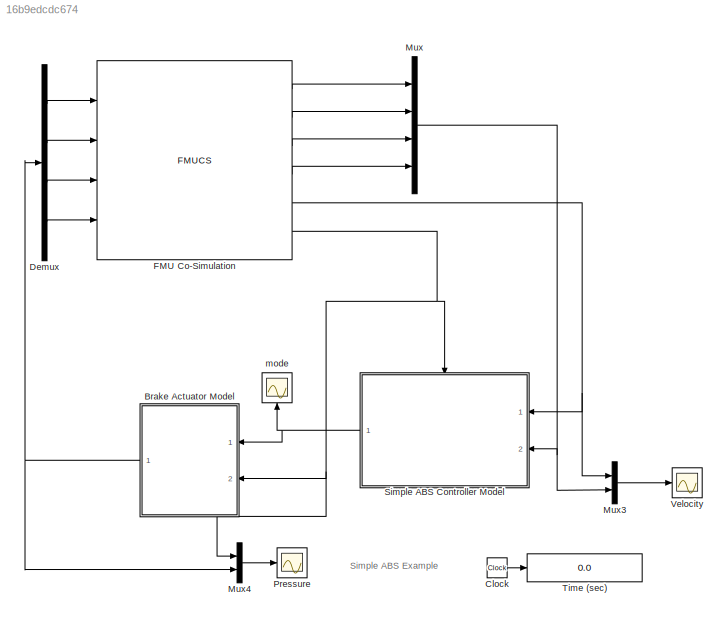
MODEL slx_16b9edcdc674
KIND model
CONFIG AbsTol = 1e-6
CONFIG FixedStep = 0.001
CONFIG MaxStep = auto
CONFIG MinStep = auto
CONFIG RelTol = 1e-3
CONFIG SampleTimeConstraint = Unconstrained
CONFIG Solver = ode45
CONFIG SolverMode = SingleTasking
CONFIG SolverName = ode45
CONFIG StartTime = 0
CONFIG StopTime = 10
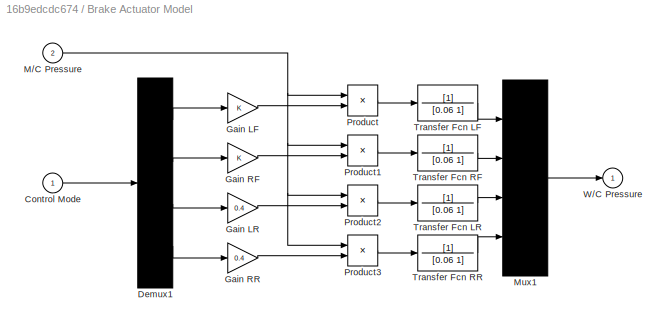
BLOCK [SubSystem] Brake Actuator Model
  Ports = [2, 1]
  RequestExecContextInheritance = off
  Variant = off
BLOCK [Inport] Brake Actuator Model/Control Mode
  IconDisplay = Port number
BLOCK [Demux] Brake Actuator Model/Demux1
  Ports = [1, 4]
BLOCK [Gain] Brake Actuator Model/Gain LF
BLOCK [Gain] Brake Actuator Model/Gain LR
  Gain = 0.4
BLOCK [Gain] Brake Actuator Model/Gain RF
BLOCK [Gain] Brake Actuator Model/Gain RR
  Gain = 0.4
BLOCK [Inport] Brake Actuator Model/M//C Pressure
  IconDisplay = Port number
  Port = 2
BLOCK [Mux] Brake Actuator Model/Mux1
  Ports = [4, 1]
BLOCK [Product] Brake Actuator Model/Product
  Ports = [2, 1]
  RndMeth = Floor
BLOCK [Product] Brake Actuator Model/Product1
  Ports = [2, 1]
  RndMeth = Floor
BLOCK [Product] Brake Actuator Model/Product2
  Ports = [2, 1]
  RndMeth = Floor
BLOCK [Product] Brake Actuator Model/Product3
  Ports = [2, 1]
  RndMeth = Floor
BLOCK [TransferFcn] Brake Actuator Model/Transfer Fcn LF
  Denominator = [0.06 1]
BLOCK [TransferFcn] Brake Actuator Model/Transfer Fcn LR
  Denominator = [0.06 1]
BLOCK [TransferFcn] Brake Actuator Model/Transfer Fcn RF
  Denominator = [0.06 1]
BLOCK [TransferFcn] Brake Actuator Model/Transfer Fcn RR
  Denominator = [0.06 1]
BLOCK [Outport] Brake Actuator Model/W//C Pressure
  IconDisplay = Port number
  InitialOutput = 0
BLOCK [Clock] Clock
BLOCK [Demux] Demux
  DisplayOption = bar
  Ports = [1, 4]
BLOCK [FMUCS] FMU Co-Simulation
  FMUName = <path>
  FMUSampleTime = 0.001
  MaskDisplay = if (exist('<path>','file'))\n    image('<path>');\n    text(0.03, 0.97, 'CarSim FMU -- FMI1.0', 'horizontalAlignment', 'left', 'verticalAlignment', 'top')...<+382ch>
  MaskType = CarSim FMU -- FMI1.0[Co-Simulation, v1.0]
  Ports = [4, 6]
BLOCK [Mux] Mux
  DisplayOption = bar
  Ports = [4, 1]
BLOCK [Mux] Mux3
  DisplayOption = bar
  Inputs = 2
  Ports = [2, 1]
BLOCK [Mux] Mux4
  DisplayOption = bar
  Inputs = 2
  Ports = [2, 1]
BLOCK [Scope] Pressure
  Ports = [1]
  ScopeSpecificationString = Simulink.scopes.TimeScopeBlockCfg('CurrentConfiguration', extmgr.ConfigurationSet(extmgr.Configuration('Core','General UI',true),extmgr.Configuration('Core','Source UI',true),extmgr.Configuration('Sources','WiredSimulink',true,'DataLoggingSaveFormat','Array','DataLoggingDecimation','1','DataLoggingDecimateData',true),extmgr.Configuration('Visuals','Time Domain',true,'TimeAxisLabels','All','Seriali...<+1610ch>
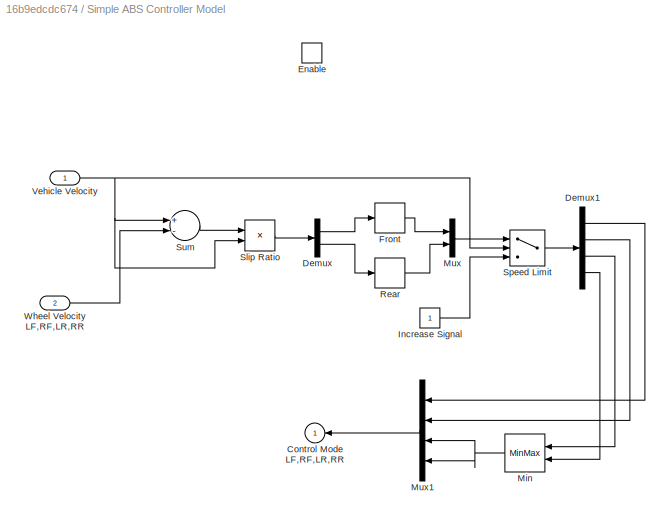
BLOCK [SubSystem] Simple ABS Controller Model
  Ports = [2, 1, 1]
  RequestExecContextInheritance = off
  Variant = off
BLOCK [Outport] Simple ABS Controller Model/Control Mode LF,RF,LR,RR
  IconDisplay = Port number
  InitialOutput = 0
BLOCK [Demux] Simple ABS Controller Model/Demux
  Outputs = [2 2]
  Ports = [1, 2]
BLOCK [Demux] Simple ABS Controller Model/Demux1
  Ports = [1, 4]
BLOCK [EnablePort] Simple ABS Controller Model/Enable
  Ports = []
BLOCK [Relay] Simple ABS Controller Model/Front
  OffOutputValue = 1
  OffSwitchValue = 0.05
  OnOutputValue = 0
  OnSwitchValue = 0.1
BLOCK [Constant] Simple ABS Controller Model/Increase Signal
BLOCK [MinMax] Simple ABS Controller Model/Min
  Inputs = 2
  Ports = [2, 1]
BLOCK [Mux] Simple ABS Controller Model/Mux
  DisplayOption = bar
  Inputs = 2
  Ports = [2, 1]
BLOCK [Mux] Simple ABS Controller Model/Mux1
  DisplayOption = bar
  Ports = [4, 1]
BLOCK [Relay] Simple ABS Controller Model/Rear
  OffOutputValue = 1
  OffSwitchValue = 0.05
  OnOutputValue = 0
  OnSwitchValue = 0.1
BLOCK [Product] Simple ABS Controller Model/Slip Ratio
  Inputs = */
  Ports = [2, 1]
  RndMeth = Floor
BLOCK [Switch] Simple ABS Controller Model/Speed Limit
  Threshold = 3
BLOCK [Sum] Simple ABS Controller Model/Sum
  Inputs = +-
  Ports = [2, 1]
BLOCK [Inport] Simple ABS Controller Model/Vehicle Velocity
  IconDisplay = Port number
BLOCK [Inport] Simple ABS Controller Model/Wheel Velocity LF,RF,LR,RR
  IconDisplay = Port number
  Port = 2
BLOCK [Display] Time (sec)
  Decimation = 100
  Format = bank
  Ports = [1]
BLOCK [Scope] Velocity
  Ports = [1]
  ScopeSpecificationString = Simulink.scopes.TimeScopeBlockCfg('CurrentConfiguration', extmgr.ConfigurationSet(extmgr.Configuration('Core','General UI',true),extmgr.Configuration('Core','Source UI',true),extmgr.Configuration('Sources','WiredSimulink',true,'DataLoggingSaveFormat','Array','DataLoggingDecimation','1','DataLoggingDecimateData',true),extmgr.Configuration('Visuals','Time Domain',true,'TimeAxisLabels','All','Seriali...<+1615ch>
BLOCK [Scope] mode
  Ports = [1]
  ScopeSpecificationString = Simulink.scopes.TimeScopeBlockCfg('CurrentConfiguration', extmgr.ConfigurationSet(extmgr.Configuration('Core','General UI',true),extmgr.Configuration('Core','Source UI',true),extmgr.Configuration('Sources','WiredSimulink',true,'DataLoggingSaveFormat','Array','DataLoggingDecimation','1','DataLoggingDecimateData',true),extmgr.Configuration('Visuals','Time Domain',true,'TimeAxisLabels','All','Seriali...<+1607ch>
ANNOTATION (root): Simple ABS Example
LINE Brake Actuator Model/Control Mode:1 -> Brake Actuator Model/Demux1:1
LINE Brake Actuator Model/Demux1:1 -> Brake Actuator Model/Gain LF:1
LINE Brake Actuator Model/Demux1:2 -> Brake Actuator Model/Gain RF:1
LINE Brake Actuator Model/Demux1:3 -> Brake Actuator Model/Gain LR:1
LINE Brake Actuator Model/Demux1:4 -> Brake Actuator Model/Gain RR:1
LINE Brake Actuator Model/Gain LF:1 -> Brake Actuator Model/Product:2
LINE Brake Actuator Model/Gain LR:1 -> Brake Actuator Model/Product2:2
LINE Brake Actuator Model/Gain RF:1 -> Brake Actuator Model/Product1:2
LINE Brake Actuator Model/Gain RR:1 -> Brake Actuator Model/Product3:2
NET Brake Actuator Model/M//C Pressure:1 -> Brake Actuator Model/Product1:1, Brake Actuator Model/Product2:1, Brake Actuator Model/Product3:1, Brake Actuator Model/Product:1
LINE Brake Actuator Model/Mux1:1 -> Brake Actuator Model/W//C Pressure:1
LINE Brake Actuator Model/Product1:1 -> Brake Actuator Model/Transfer Fcn RF:1
LINE Brake Actuator Model/Product2:1 -> Brake Actuator Model/Transfer Fcn LR:1
LINE Brake Actuator Model/Product3:1 -> Brake Actuator Model/Transfer Fcn RR:1
LINE Brake Actuator Model/Product:1 -> Brake Actuator Model/Transfer Fcn LF:1
LINE Brake Actuator Model/Transfer Fcn LF:1 -> Brake Actuator Model/Mux1:1
LINE Brake Actuator Model/Transfer Fcn LR:1 -> Brake Actuator Model/Mux1:3
LINE Brake Actuator Model/Transfer Fcn RF:1 -> Brake Actuator Model/Mux1:2
LINE Brake Actuator Model/Transfer Fcn RR:1 -> Brake Actuator Model/Mux1:4
NET Brake Actuator Model:1 -> Demux:1, Mux4:2
LINE Clock:1 -> Time (sec):1
LINE Demux:1 -> FMU Co-Simulation:1
LINE Demux:2 -> FMU Co-Simulation:2
LINE Demux:3 -> FMU Co-Simulation:3
LINE Demux:4 -> FMU Co-Simulation:4
LINE FMU Co-Simulation:1 -> Mux:1
LINE FMU Co-Simulation:2 -> Mux:2
LINE FMU Co-Simulation:3 -> Mux:3
LINE FMU Co-Simulation:4 -> Mux:4
NET FMU Co-Simulation:5 -> Mux3:1, Simple ABS Controller Model:1
NET FMU Co-Simulation:6 -> Brake Actuator Model:2, Mux4:1, Simple ABS Controller Model:enable
LINE Mux3:1 -> Velocity:1
LINE Mux4:1 -> Pressure:1
NET Mux:1 -> Mux3:2, Simple ABS Controller Model:2
LINE Simple ABS Controller Model/Demux1:1 -> Simple ABS Controller Model/Mux1:1
LINE Simple ABS Controller Model/Demux1:2 -> Simple ABS Controller Model/Mux1:2
LINE Simple ABS Controller Model/Demux1:3 -> Simple ABS Controller Model/Min:1
LINE Simple ABS Controller Model/Demux1:4 -> Simple ABS Controller Model/Min:2
LINE Simple ABS Controller Model/Demux:1 -> Simple ABS Controller Model/Front:1
LINE Simple ABS Controller Model/Demux:2 -> Simple ABS Controller Model/Rear:1
LINE Simple ABS Controller Model/Front:1 -> Simple ABS Controller Model/Mux:1
LINE Simple ABS Controller Model/Increase Signal:1 -> Simple ABS Controller Model/Speed Limit:3
NET Simple ABS Controller Model/Min:1 -> Simple ABS Controller Model/Mux1:3, Simple ABS Controller Model/Mux1:4
LINE Simple ABS Controller Model/Mux1:1 -> Simple ABS Controller Model/Control Mode LF,RF,LR,RR:1
LINE Simple ABS Controller Model/Mux:1 -> Simple ABS Controller Model/Speed Limit:1
LINE Simple ABS Controller Model/Rear:1 -> Simple ABS Controller Model/Mux:2
LINE Simple ABS Controller Model/Slip Ratio:1 -> Simple ABS Controller Model/Demux:1
LINE Simple ABS Controller Model/Speed Limit:1 -> Simple ABS Controller Model/Demux1:1
LINE Simple ABS Controller Model/Sum:1 -> Simple ABS Controller Model/Slip Ratio:1
NET Simple ABS Controller Model/Vehicle Velocity:1 -> Simple ABS Controller Model/Slip Ratio:2, Simple ABS Controller Model/Speed Limit:2, Simple ABS Controller Model/Sum:1
LINE Simple ABS Controller Model/Wheel Velocity LF,RF,LR,RR:1 -> Simple ABS Controller Model/Sum:2
NET Simple ABS Controller Model:1 -> Brake Actuator Model:1, mode:1
note: NET lines group one-source signal fan-out (src -> all destinations, sorted); 1:1 wires keep LINE
note: 3 file-system paths scrubbed to <path> (not preserved elsewhere — flat text is the only slx artifact)
